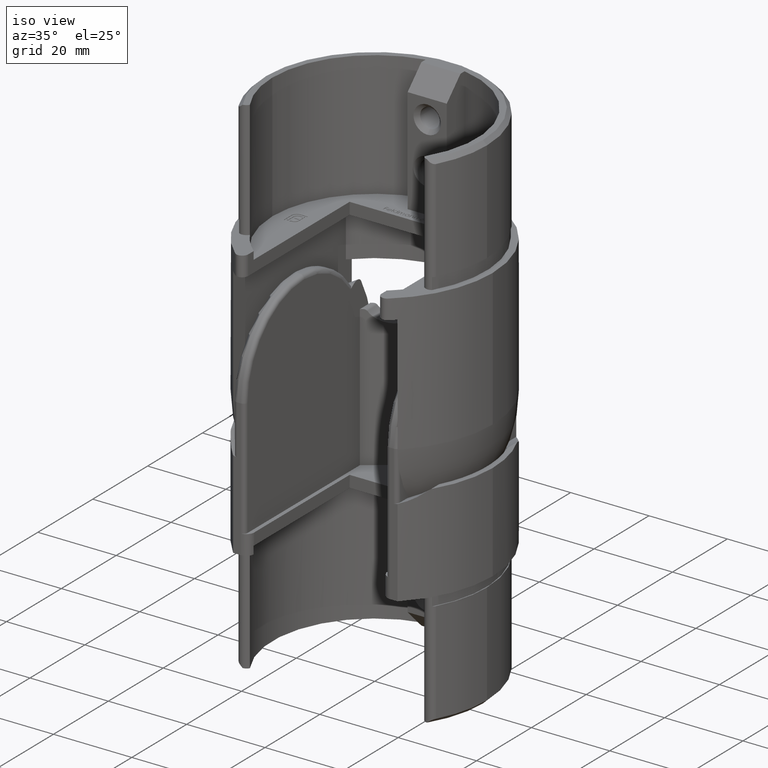
[diagram: clean part render]
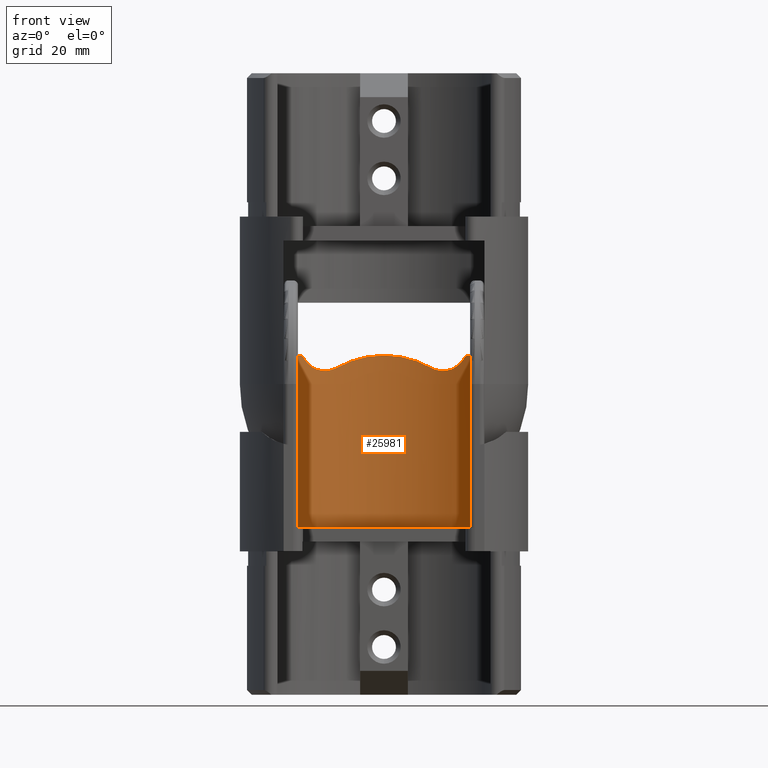
[diagram: tour spotlight — one face highlighted and labeled with its STEP entity id]
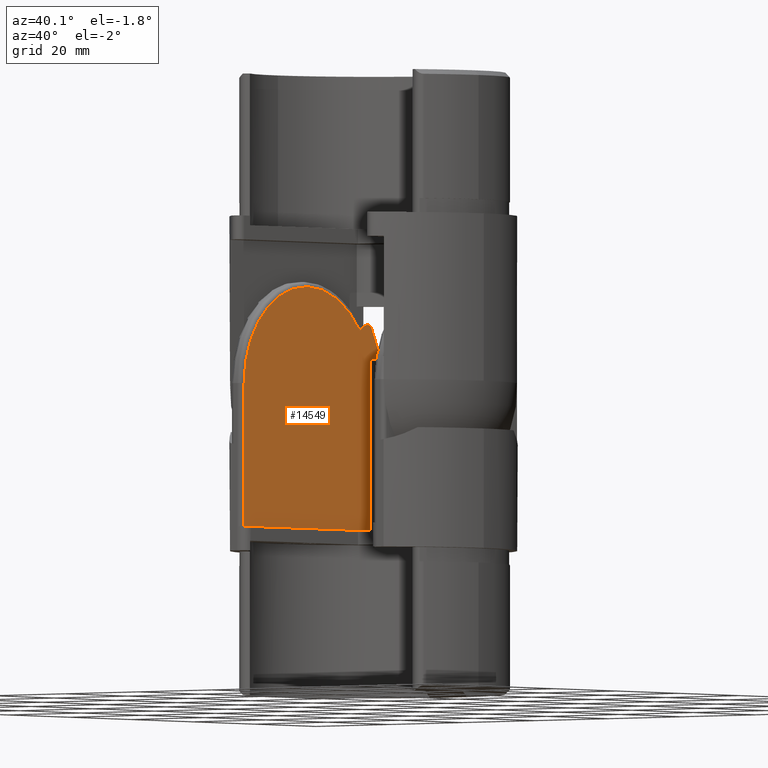
[diagram: tour spotlight — one face highlighted and labeled with its STEP entity id]
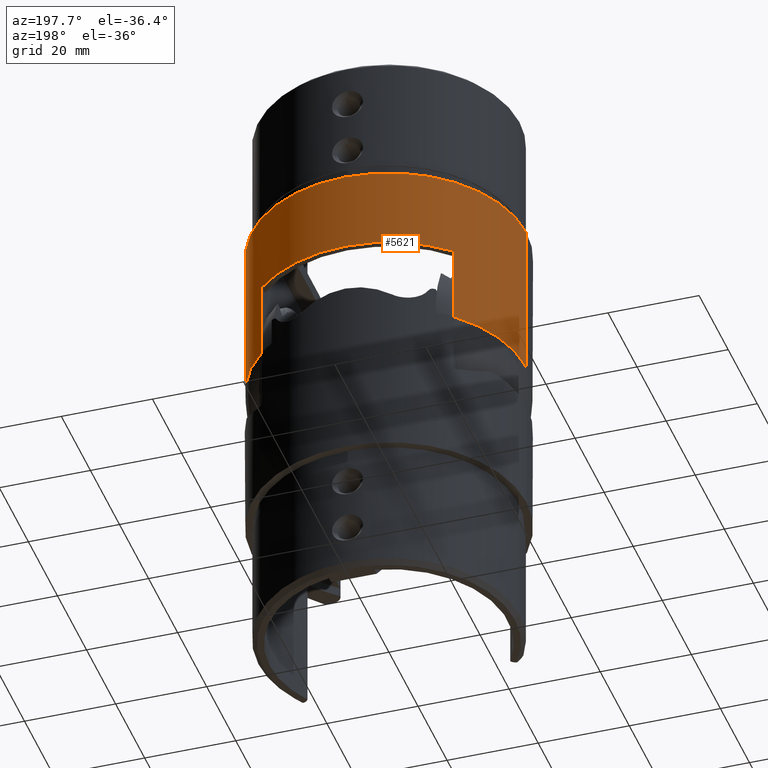
[diagram: tour spotlight — one face highlighted and labeled with its STEP entity id]
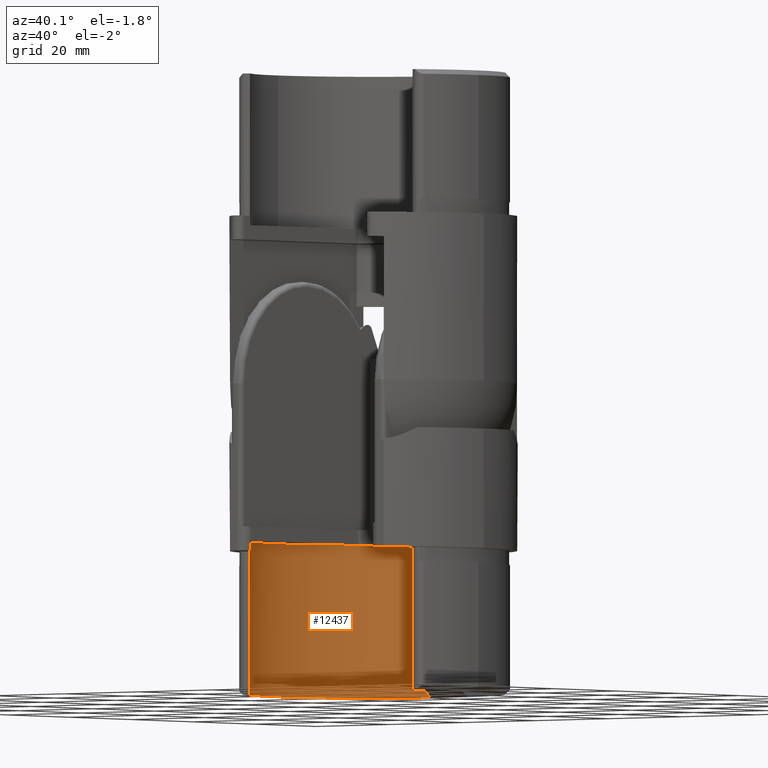
[diagram: tour spotlight — one face highlighted and labeled with its STEP entity id]
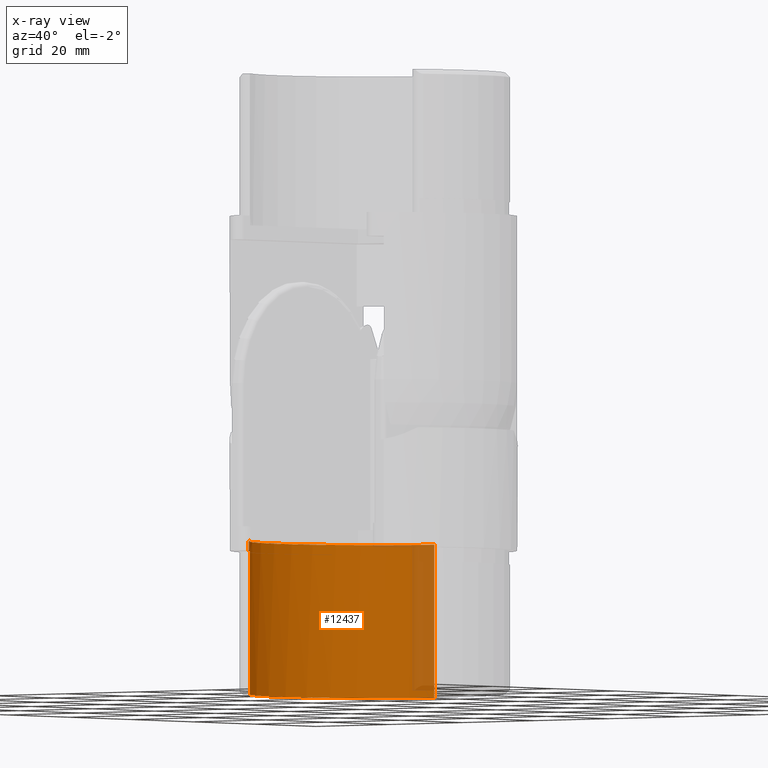
[diagram: x-ray of the same camera — body ghosted, this tour face saturated]
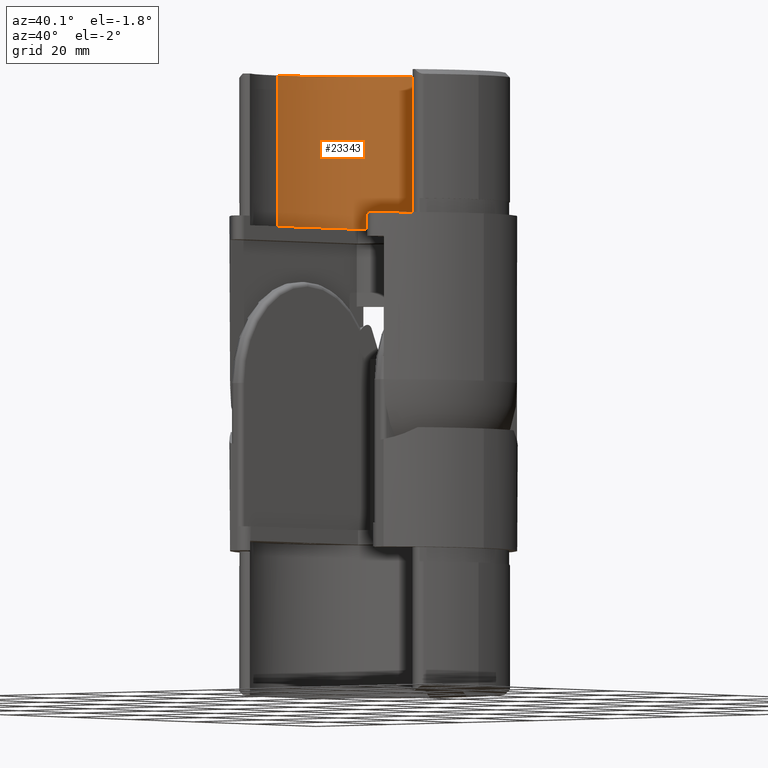
[diagram: tour spotlight — one face highlighted and labeled with its STEP entity id]
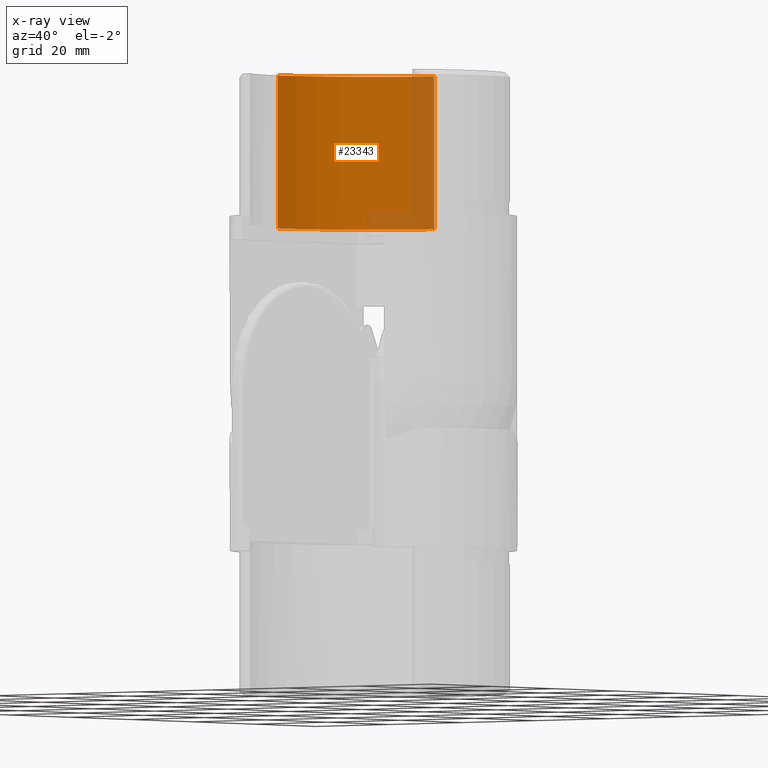
[diagram: x-ray of the same camera — body ghosted, this tour face saturated]
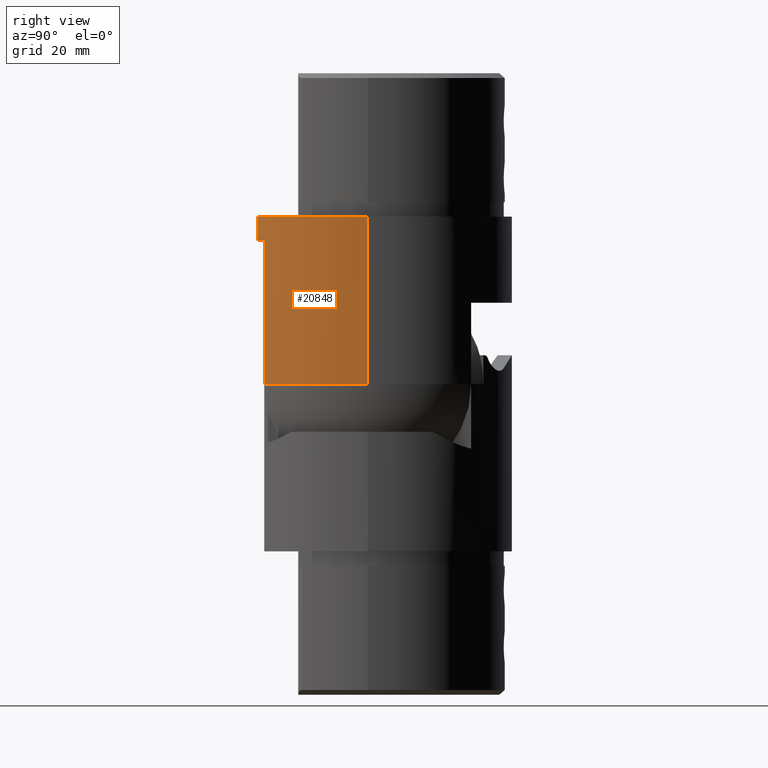
[diagram: tour spotlight — one face highlighted and labeled with its STEP entity id]
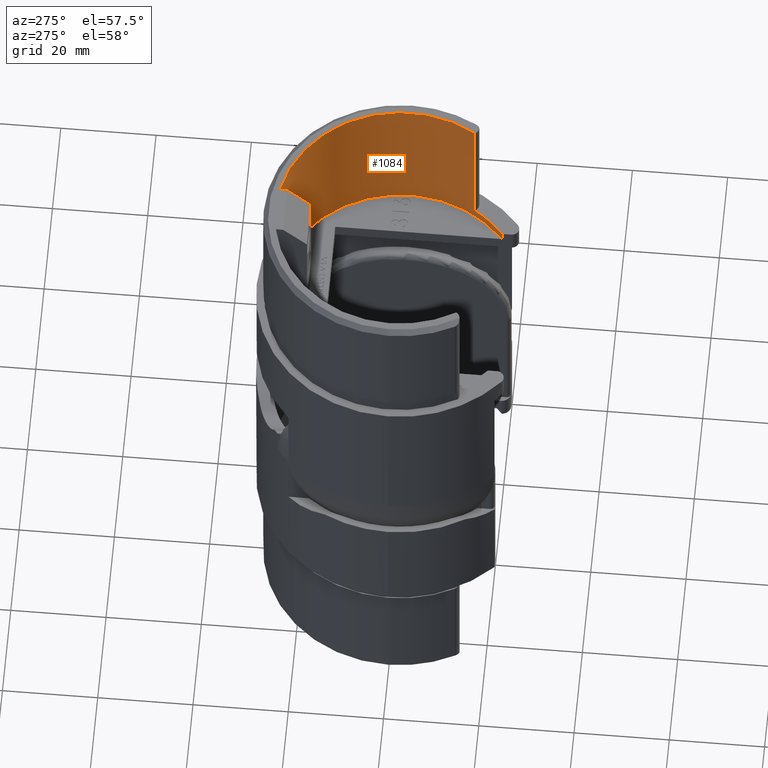
[diagram: tour spotlight — one face highlighted and labeled with its STEP entity id]
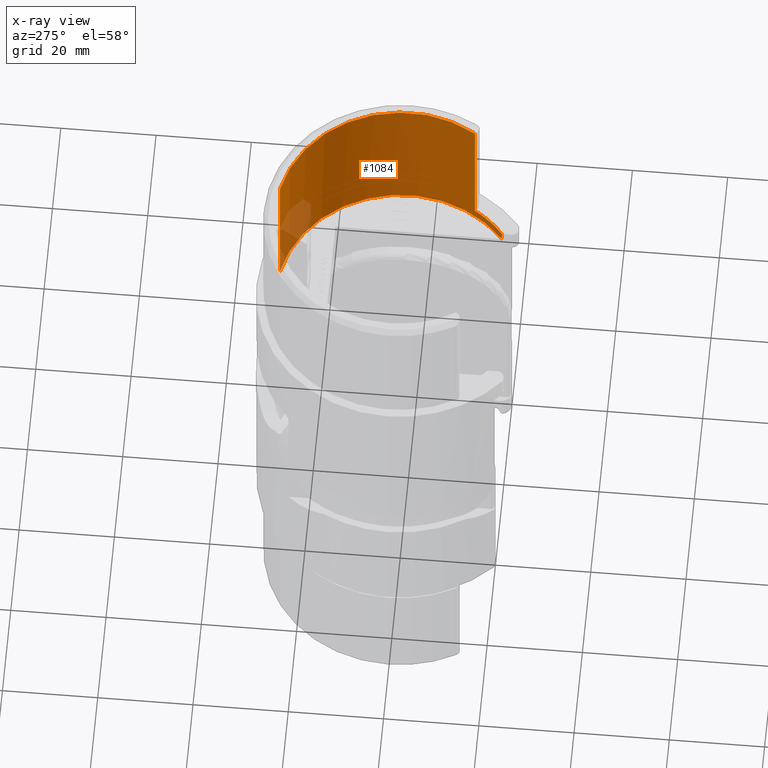
[diagram: x-ray of the same camera — body ghosted, this tour face saturated]
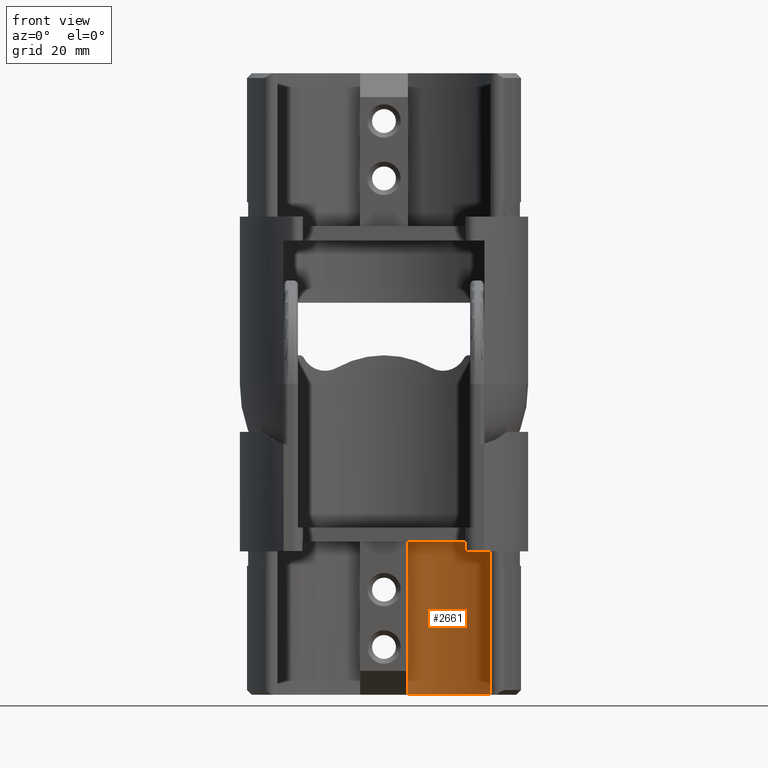
[diagram: tour spotlight — one face highlighted and labeled with its STEP entity id]
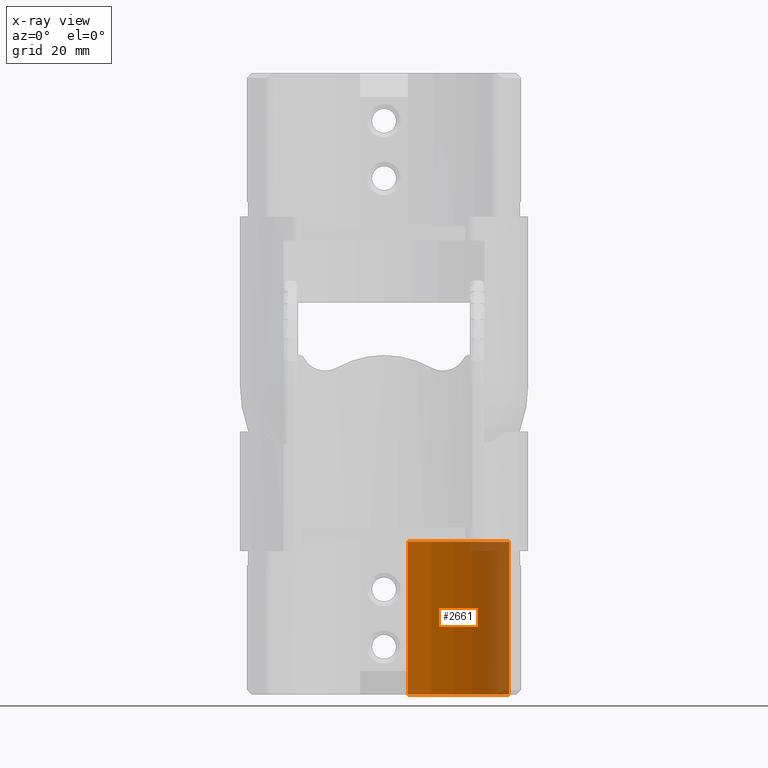
[diagram: x-ray of the same camera — body ghosted, this tour face saturated]
A machine part: a face-by-face anatomy tour. The part has 532 B-rep faces; the first image is the clean iso view, then the 8 largest visible faces are spotlighted one at a time (largest first), each with its STEP entity span.

Face 1 — front view, entity #25981. In plain terms, the highlighted cylindrical surface (partial cylindrical patch) has radius 27.15 mm, axis along (-0, -0, -1).
Definition (entity closure, byte-faithful):
#4 = EDGE_CURVE ( 'NONE', #19215, #28466, #17053, .T. ) ;
#59 = CARTESIAN_POINT ( 'NONE',  ( -9.855999999999998096, 25.29786085818323826, -36.40285218003070611 ) ) ;
#556 = CARTESIAN_POINT ( 'NONE',  ( -11.64953690046617929, 24.52438664235300081, -35.79585068811073967 ) ) ;
#564 = CARTESIAN_POINT ( 'NONE',  ( 1.649705368043440938E-25, 27.14999999999999503, -38.99999999999998579 ) ) ;
#729 = CARTESIAN_POINT ( 'NONE',  ( 13.14172628603782478, 23.76039229492722882, -35.81052548185998319 ) ) ;
#848 = CARTESIAN_POINT ( 'NONE',  ( -16.76236849923077088, 21.35756311698494159, -38.45892753750639059 ) ) ;
#1257 = DIRECTION ( 'NONE',  ( -1.000000000000000000, 0.000000000000000000, 0.000000000000000000 ) ) ;
#1272 = EDGE_CURVE ( 'NONE', #17505, #25627, #22356, .T. ) ;
#1311 = AXIS2_PLACEMENT_3D ( 'NONE', #16207, #2245, #23581 ) ;
#1420 = CARTESIAN_POINT ( 'NONE',  ( -16.76236849923077088, 21.35756311698494159, -38.45892753750639059 ) ) ;
#1432 = CARTESIAN_POINT ( 'NONE',  ( 3.466990336596091904, 26.93118877494105945, -38.70202500568675674 ) ) ;
#1530 = CARTESIAN_POINT ( 'NONE',  ( 17.65084219907692642, 20.62935456245019239, -38.99999999999999289 ) ) ;
#1859 = B_SPLINE_CURVE_WITH_KNOTS ( 'NONE', 3,
 ( #12326, #20339, #16238, #5920, #10154, #1432, #9625, #11981, #23622, #14623 ),
 .UNSPECIFIED., .F., .F.,
 ( 4, 2, 2, 2, 4 ),
 ( 1.734723475976807094E-18, 0.005243620571763016325, 0.006554525714703767804, 0.007865430857644519283, 0.01048724114352602398 ),
 .UNSPECIFIED. ) ;
#2245 = DIRECTION ( 'NONE',  ( -0.000000000000000000, -0.000000000000000000, -1.000000000000000000 ) ) ;
#2479 = EDGE_CURVE ( 'NONE', #21468, #17505, #25243, .T. ) ;
#2620 = CARTESIAN_POINT ( 'NONE',  ( 17.48312144213227270, 20.77196539619377447, -38.98952033386763816 ) ) ;
#2952 = CARTESIAN_POINT ( 'NONE',  ( 11.64953690046617929, 24.52438664235300081, -35.79585068811073967 ) ) ;
#3085 = CARTESIAN_POINT ( 'NONE',  ( -0.8728357178837506947, 27.14999999999999147, -38.99999999999999289 ) ) ;
#3253 = CARTESIAN_POINT ( 'NONE',  ( 16.59931079519326858, 21.48553807867622112, -38.14325138004198834 ) ) ;
#3547 = EDGE_CURVE ( 'NONE', #19215, #9615, #1859, .T. ) ;
#4953 = CARTESIAN_POINT ( 'NONE',  ( 16.76236849923077443, 21.35756311698493803, -38.45892753750639059 ) ) ;
#4959 = AXIS2_PLACEMENT_3D ( 'NONE', #5379, #26304, #28651 ) ;
#5091 = VERTEX_POINT ( 'NONE', #5805 ) ;
#5298 = CARTESIAN_POINT ( 'NONE',  ( 10.97906559897014134, 24.83172443697723608, -35.93366642262661514 ) ) ;
#5379 = CARTESIAN_POINT ( 'NONE',  ( 0.000000000000000000, 0.000000000000000000, -38.99999999999999289 ) ) ;
#5416 = CARTESIAN_POINT ( 'NONE',  ( -10.48744249978978083, 25.04523366981128873, -36.08881966479116699 ) ) ;
#5592 = CARTESIAN_POINT ( 'NONE',  ( 13.46707371672883902, 23.57732726455373395, -35.87610097392074238 ) ) ;
#5805 = CARTESIAN_POINT ( 'NONE',  ( -9.855999999999998096, 25.29786085818323826, -36.40285218003070611 ) ) ;
#5920 = CARTESIAN_POINT ( 'NONE',  ( 4.748720461205732768, 26.73487867478699442, -38.43288906175617115 ) ) ;
#6280 = CARTESIAN_POINT ( 'NONE',  ( -18.00000000000000711, 20.32541512491195235, -157.4942136258985670 ) ) ;
#6401 = ORIENTED_EDGE ( 'NONE', *, *, #10336, .F. ) ;
#6781 = B_SPLINE_CURVE_WITH_KNOTS ( 'NONE', 3,
 ( #59, #17139, #5416, #14509, #9904, #14818, #556, #28483, #16836, #21479, #10113, #24005, #12271, #7567, #26147, #26346, #14611, #28690, #16941, #848 ),
 .UNSPECIFIED., .F., .F.,
 ( 4, 2, 2, 2, 2, 2, 2, 2, 2, 4 ),
 ( 1.734723475976806902E-18, 0.001115406637026864194, 0.001673109955540295858, 0.002230813274053727521, 0.003346219911080594751, 0.004461626548107461981, 0.005577033185134329211, 0.006692439822161197309, 0.007807846459188064539, 0.008923253096214932636 ),
 .UNSPECIFIED. ) ;
#7031 = EDGE_CURVE ( 'NONE', #12991, #17219, #25479, .T. ) ;
#7178 = AXIS2_PLACEMENT_3D ( 'NONE', #10912, #11116, #15508 ) ;
#7544 = CARTESIAN_POINT ( 'NONE',  ( 9.855999999999999872, 25.29786085818323826, -36.40285218003069900 ) ) ;
#7567 = CARTESIAN_POINT ( 'NONE',  ( -14.96250888826568115, 22.65750915378987074, -36.49639779482667734 ) ) ;
#7647 = CARTESIAN_POINT ( 'NONE',  ( 12.48501964951245391, 24.11193679772039999, -35.74540742929338677 ) ) ;
#7721 = ORIENTED_EDGE ( 'NONE', *, *, #1272, .T. ) ;
#7750 = DIRECTION ( 'NONE',  ( -0.000000000000000000, -0.000000000000000000, 1.000000000000000000 ) ) ;
#7753 = CARTESIAN_POINT ( 'NONE',  ( 12.15302458509757244, 24.28096979426060997, -35.74497899728715566 ) ) ;
#7851 = ORIENTED_EDGE ( 'NONE', *, *, #14252, .F. ) ;
#7862 = CARTESIAN_POINT ( 'NONE',  ( 15.97698283272031006, 21.95290526473543835, -37.32696602871533997 ) ) ;
#8456 = EDGE_LOOP ( 'NONE', ( #18583, #8981, #7851, #26226, #23997, #6401, #17841, #7721, #27907, #27696, #14397 ) ) ;
#8981 = ORIENTED_EDGE ( 'NONE', *, *, #18837, .F. ) ;
#8997 = EDGE_CURVE ( 'NONE', #12991, #21018, #17370, .T. ) ;
#9136 = B_SPLINE_CURVE_WITH_KNOTS ( 'NONE', 3,
 ( #11828, #25621, #9278, #27748, #13868, #11727 ),
 .UNSPECIFIED., .F., .F.,
 ( 4, 2, 4 ),
 ( 0.000000000000000000, 0.0006563015369132407318, 0.001312603073826481464 ),
 .UNSPECIFIED. ) ;
#9278 = CARTESIAN_POINT ( 'NONE',  ( -17.00065784832055371, 21.16933616447996869, -38.78074580772950952 ) ) ;
#9615 = VERTEX_POINT ( 'NONE', #21580 ) ;
#9625 = CARTESIAN_POINT ( 'NONE',  ( 3.037869092508701296, 26.98298089015681711, -38.77271451172067174 ) ) ;
#9751 = CARTESIAN_POINT ( 'NONE',  ( 17.65084219907692642, 20.62935456245019239, -38.99999999999999289 ) ) ;
#9904 = CARTESIAN_POINT ( 'NONE',  ( -11.14482407220430638, 24.75781422795309084, -35.89062151131563638 ) ) ;
#10113 = CARTESIAN_POINT ( 'NONE',  ( -13.46707371672883546, 23.57732726455373040, -35.87610097392074238 ) ) ;
#10154 = CARTESIAN_POINT ( 'NONE',  ( 4.321659240572637728, 26.80731639373727404, -38.53235963029378297 ) ) ;
#10336 = EDGE_CURVE ( 'NONE', #21468, #28466, #28546, .T. ) ;
#10407 = CARTESIAN_POINT ( 'NONE',  ( 16.76236849923077443, 21.35756311698493803, -38.45892753750639059 ) ) ;
#10440 = CARTESIAN_POINT ( 'NONE',  ( 0.000000000000000000, 0.000000000000000000, -3.000000000000000000 ) ) ;
#10902 = CARTESIAN_POINT ( 'NONE',  ( -17.65084219907692642, 20.62935456245019239, -38.99999999999999289 ) ) ;
#10912 = CARTESIAN_POINT ( 'NONE',  ( 0.000000000000000000, 0.000000000000000000, -157.4942136258985670 ) ) ;
#11116 = DIRECTION ( 'NONE',  ( -0.000000000000000000, -0.000000000000000000, 1.000000000000000000 ) ) ;
#11727 = CARTESIAN_POINT ( 'NONE',  ( -17.65084219907692642, 20.62935456245019239, -38.99999999999999289 ) ) ;
#11741 = CIRCLE ( 'NONE', #12691, 27.14999999999999503 ) ;
#11828 = CARTESIAN_POINT ( 'NONE',  ( -16.76236849923077088, 21.35756311698494159, -38.45892753750639059 ) ) ;
#11981 = CARTESIAN_POINT ( 'NONE',  ( 1.745156399668636782, 27.10768441803631745, -38.94266733116745627 ) ) ;
#12208 = CARTESIAN_POINT ( 'NONE',  ( 17.23533325703428432, 20.97798584012423362, -38.91398730263668426 ) ) ;
#12251 = CARTESIAN_POINT ( 'NONE',  ( 11.47991626899729134, 24.60422710436220228, -35.82167721444744757 ) ) ;
#12271 = CARTESIAN_POINT ( 'NONE',  ( -14.38720815903912609, 23.02710651979486656, -36.18924948435826394 ) ) ;
#12280 = CARTESIAN_POINT ( 'NONE',  ( -8.374660251238314146, 25.83903470648544598, -37.18198630858349674 ) ) ;
#12326 = CARTESIAN_POINT ( 'NONE',  ( 9.855999999999999872, 25.29786085818323826, -36.40285218003069900 ) ) ;
#12691 = AXIS2_PLACEMENT_3D ( 'NONE', #10440, #26451, #1257 ) ;
#12991 = VERTEX_POINT ( 'NONE', #21595 ) ;
#13450 = FACE_OUTER_BOUND ( 'NONE', #8456, .T. ) ;
#13690 = CARTESIAN_POINT ( 'NONE',  ( 18.00000000000000355, 20.32541512491195235, -3.000000000000000000 ) ) ;
#13868 = CARTESIAN_POINT ( 'NONE',  ( -17.48259547637318079, 20.77330944693123627, -38.99999999999999289 ) ) ;
#14250 = CARTESIAN_POINT ( 'NONE',  ( 16.85867381866304981, 21.28197840519374040, -38.64537253476191836 ) ) ;
#14252 = EDGE_CURVE ( 'NONE', #9615, #5091, #20435, .T. ) ;
#14312 = EDGE_CURVE ( 'NONE', #25627, #21018, #11741, .T. ) ;
#14397 = ORIENTED_EDGE ( 'NONE', *, *, #7031, .T. ) ;
#14421 = CARTESIAN_POINT ( 'NONE',  ( -9.855999999999998096, 25.29786085818323826, -36.40285218003070611 ) ) ;
#14509 = CARTESIAN_POINT ( 'NONE',  ( -10.97906559897013423, 24.83172443697723253, -35.93366642262662225 ) ) ;
#14611 = CARTESIAN_POINT ( 'NONE',  ( -15.97698283272031006, 21.95290526473543835, -37.32696602871533997 ) ) ;
#14623 = CARTESIAN_POINT ( 'NONE',  ( 1.649705368043440938E-25, 27.14999999999999503, -38.99999999999998579 ) ) ;
#14816 = VECTOR ( 'NONE', #15577, 1000.000000000000000 ) ;
#14818 = CARTESIAN_POINT ( 'NONE',  ( -11.47991626899729489, 24.60422710436220939, -35.82167721444745467 ) ) ;
#14831 = CARTESIAN_POINT ( 'NONE',  ( -4.329130897907978337, 26.81593519205566878, -38.54469559122473754 ) ) ;
#14904 = CARTESIAN_POINT ( 'NONE',  ( 16.40635049250184707, 21.63390148624775833, -37.85238526793769864 ) ) ;
#15255 = EDGE_CURVE ( 'NONE', #29919, #17219, #9136, .T. ) ;
#15296 = CARTESIAN_POINT ( 'NONE',  ( 15.23658690841532959, 22.47362453108995695, -36.67919257553581502 ) ) ;
#15508 = DIRECTION ( 'NONE',  ( 1.000000000000000000, 0.000000000000000000, 0.000000000000000000 ) ) ;
#15577 = DIRECTION ( 'NONE',  ( -0.000000000000000000, -0.000000000000000000, 1.000000000000000000 ) ) ;
#16207 = CARTESIAN_POINT ( 'NONE',  ( 0.000000000000000000, 0.000000000000000000, -38.99999999999999289 ) ) ;
#16238 = CARTESIAN_POINT ( 'NONE',  ( 6.840411345075500194, 26.32938687129336230, -37.87350379535597256 ) ) ;
#16836 = CARTESIAN_POINT ( 'NONE',  ( -12.48501964951244503, 24.11193679772039644, -35.74540742929337966 ) ) ;
#16941 = CARTESIAN_POINT ( 'NONE',  ( -16.59931079519327568, 21.48553807867622467, -38.14325138004200255 ) ) ;
#17053 = B_SPLINE_CURVE_WITH_KNOTS ( 'NONE', 3,
 ( #7544, #23789, #28566, #5298, #26125, #12251, #2952, #7753, #7647, #729, #5592, #21960, #17510, #24388, #15296, #22160, #7862, #14904, #3253, #10407 ),
 .UNSPECIFIED., .F., .F.,
 ( 4, 2, 2, 2, 2, 2, 2, 2, 2, 4 ),
 ( 1.734723475976807094E-18, 0.001115406637026867881, 0.001673109955540301712, 0.002230813274053734894, 0.003346219911080602558, 0.004461626548107469788, 0.005577033185134336150, 0.006692439822161204248, 0.007807846459188067141, 0.008923253096214929167 ),
 .UNSPECIFIED. ) ;
#17139 = CARTESIAN_POINT ( 'NONE',  ( -10.16713630113645905, 25.17664272827133232, -36.22664201905952552 ) ) ;
#17166 = CARTESIAN_POINT ( 'NONE',  ( 9.855999999999999872, 25.29786085818323826, -36.40285218003069900 ) ) ;
#17219 = VERTEX_POINT ( 'NONE', #10902 ) ;
#17370 = LINE ( 'NONE', #6280, #14816 ) ;
#17505 = VERTEX_POINT ( 'NONE', #19226 ) ;
#17510 = CARTESIAN_POINT ( 'NONE',  ( 14.38720815903913142, 23.02710651979486656, -36.18924948435826394 ) ) ;
#17841 = ORIENTED_EDGE ( 'NONE', *, *, #2479, .T. ) ;
#18583 = ORIENTED_EDGE ( 'NONE', *, *, #15255, .F. ) ;
#18837 = EDGE_CURVE ( 'NONE', #5091, #29919, #6781, .T. ) ;
#19133 = VECTOR ( 'NONE', #7750, 1000.000000000000000 ) ;
#19215 = VERTEX_POINT ( 'NONE', #17166 ) ;
#19226 = CARTESIAN_POINT ( 'NONE',  ( 18.00000000000000000, 20.32541512491194524, -38.99999999999999289 ) ) ;
#20339 = CARTESIAN_POINT ( 'NONE',  ( 8.398027537714279234, 25.86588424438349065, -37.22856605955080767 ) ) ;
#20435 = B_SPLINE_CURVE_WITH_KNOTS ( 'NONE', 3,
 ( #564, #3085, #25959, #28701, #14831, #23821, #26156, #12280, #28286, #14421 ),
 .UNSPECIFIED., .F., .F.,
 ( 4, 2, 2, 2, 4 ),
 ( 0.01048724114352602398, 0.01309887738039655462, 0.01571051361726708354, 0.01832214985413761418, 0.02093378609100814483 ),
 .UNSPECIFIED. ) ;
#20500 = CARTESIAN_POINT ( 'NONE',  ( -18.00000000000000711, 20.32541512491195235, -3.000000000000000000 ) ) ;
#21018 = VERTEX_POINT ( 'NONE', #20500 ) ;
#21468 = VERTEX_POINT ( 'NONE', #1530 ) ;
#21479 = CARTESIAN_POINT ( 'NONE',  ( -13.14172628603782123, 23.76039229492722882, -35.81052548185998319 ) ) ;
#21580 = CARTESIAN_POINT ( 'NONE',  ( 1.649705368043440938E-25, 27.14999999999999503, -38.99999999999998579 ) ) ;
#21595 = CARTESIAN_POINT ( 'NONE',  ( -18.00000000000000000, 20.32541512491194524, -38.99999999999999289 ) ) ;
#21960 = CARTESIAN_POINT ( 'NONE',  ( 14.08828013773382715, 23.21147987941336410, -36.06542902959387931 ) ) ;
#22160 = CARTESIAN_POINT ( 'NONE',  ( 15.74254166722038839, 22.12215545641815595, -37.09389307886265641 ) ) ;
#22356 = LINE ( 'NONE', #26618, #19133 ) ;
#23581 = DIRECTION ( 'NONE',  ( 1.000000000000000000, 0.000000000000000000, 0.000000000000000000 ) ) ;
#23622 = CARTESIAN_POINT ( 'NONE',  ( 0.8762359898078883047, 27.14999999999999503, -38.99999999999999289 ) ) ;
#23648 = CARTESIAN_POINT ( 'NONE',  ( 17.56659339117242169, 20.70143933898942734, -39.00000000000000000 ) ) ;
#23789 = CARTESIAN_POINT ( 'NONE',  ( 10.16713630113646083, 25.17664272827132521, -36.22664201905952552 ) ) ;
#23821 = CARTESIAN_POINT ( 'NONE',  ( -5.987453113451358888, 26.49502141478608408, -38.10201312163414400 ) ) ;
#23997 = ORIENTED_EDGE ( 'NONE', *, *, #4, .T. ) ;
#24005 = CARTESIAN_POINT ( 'NONE',  ( -14.08828013773382715, 23.21147987941337121, -36.06542902959389352 ) ) ;
#24330 = CYLINDRICAL_SURFACE ( 'NONE', #7178, 27.14999999999999503 ) ;
#24388 = CARTESIAN_POINT ( 'NONE',  ( 14.96250888826568826, 22.65750915378987074, -36.49639779482669866 ) ) ;
#25243 = CIRCLE ( 'NONE', #4959, 27.14999999999998792 ) ;
#25479 = CIRCLE ( 'NONE', #1311, 27.14999999999998792 ) ;
#25621 = CARTESIAN_POINT ( 'NONE',  ( -16.85843986765957325, 21.28216202038004923, -38.64491961072344850 ) ) ;
#25627 = VERTEX_POINT ( 'NONE', #13690 ) ;
#25959 = CARTESIAN_POINT ( 'NONE',  ( -1.758988783550820889, 27.10681081122197966, -38.94148173779168332 ) ) ;
#25981 = ADVANCED_FACE ( 'NONE', ( #13450 ), #24330, .F. ) ;
#26087 = CARTESIAN_POINT ( 'NONE',  ( 17.31790049454585656, 20.90991162683442184, -38.94680017154177420 ) ) ;
#26125 = CARTESIAN_POINT ( 'NONE',  ( 11.14482407220430815, 24.75781422795308728, -35.89062151131563638 ) ) ;
#26147 = CARTESIAN_POINT ( 'NONE',  ( -15.23658690841532959, 22.47362453108996405, -36.67919257553581502 ) ) ;
#26156 = CARTESIAN_POINT ( 'NONE',  ( -6.805031787995269532, 26.29604896654636548, -37.82580948627607853 ) ) ;
#26226 = ORIENTED_EDGE ( 'NONE', *, *, #3547, .F. ) ;
#26304 = DIRECTION ( 'NONE',  ( -0.000000000000000000, -0.000000000000000000, -1.000000000000000000 ) ) ;
#26346 = CARTESIAN_POINT ( 'NONE',  ( -15.74254166722039194, 22.12215545641814884, -37.09389307886264930 ) ) ;
#26451 = DIRECTION ( 'NONE',  ( -0.000000000000000000, -0.000000000000000000, 1.000000000000000000 ) ) ;
#26618 = CARTESIAN_POINT ( 'NONE',  ( 18.00000000000000355, 20.32541512491195235, -157.4942136258985670 ) ) ;
#27696 = ORIENTED_EDGE ( 'NONE', *, *, #8997, .F. ) ;
#27748 = CARTESIAN_POINT ( 'NONE',  ( -17.31321822635293728, 20.91448387044496826, -38.95828688778347981 ) ) ;
#27907 = ORIENTED_EDGE ( 'NONE', *, *, #14312, .T. ) ;
#28116 = CARTESIAN_POINT ( 'NONE',  ( 17.00164319497347520, 21.16853887798459510, -38.78142340268373545 ) ) ;
#28286 = CARTESIAN_POINT ( 'NONE',  ( -9.129311540724225793, 25.58097734359568776, -36.81440779060127966 ) ) ;
#28466 = VERTEX_POINT ( 'NONE', #29751 ) ;
#28483 = CARTESIAN_POINT ( 'NONE',  ( -12.15302458509757066, 24.28096979426062063, -35.74497899728714145 ) ) ;
#28546 = B_SPLINE_CURVE_WITH_KNOTS ( 'NONE', 3,
 ( #9751, #23648, #2620, #26087, #12208, #28116, #14250, #4953 ),
 .UNSPECIFIED., .F., .F.,
 ( 4, 2, 2, 4 ),
 ( 4.906538933386797396E-18, 0.0003288241760176381493, 0.0006576483520352713113, 0.001315296704070540237 ),
 .UNSPECIFIED. ) ;
#28566 = CARTESIAN_POINT ( 'NONE',  ( 10.48744249978978438, 25.04523366981128518, -36.08881966479114567 ) ) ;
#28651 = DIRECTION ( 'NONE',  ( 1.000000000000000000, -3.552713678800500298E-14, 0.000000000000000000 ) ) ;
#28690 = CARTESIAN_POINT ( 'NONE',  ( -16.40635049250185062, 21.63390148624775478, -37.85238526793769864 ) ) ;
#28701 = CARTESIAN_POINT ( 'NONE',  ( -3.483790595344563812, 26.93949585615564501, -38.71344562797495570 ) ) ;
#29751 = CARTESIAN_POINT ( 'NONE',  ( 16.76236849923077443, 21.35756311698493803, -38.45892753750639059 ) ) ;
#29919 = VERTEX_POINT ( 'NONE', #1420 ) ;

Face 2 — auxiliary view, entity #14549. In plain terms, the highlighted planar face has unit normal (-1, 0, 0).
Definition (entity closure, byte-faithful):
#326 = CARTESIAN_POINT ( 'NONE',  ( 18.00000000000000355, 0.000000000000000000, -53.65000000000000568 ) ) ;
#491 = VERTEX_POINT ( 'NONE', #20548 ) ;
#557 = CARTESIAN_POINT ( 'NONE',  ( 18.00000000000000711, 19.72645599548740591, -46.09950506969557438 ) ) ;
#1019 = VECTOR ( 'NONE', #23855, 1000.000000000000000 ) ;
#1272 = EDGE_CURVE ( 'NONE', #17505, #25627, #22356, .T. ) ;
#1329 = CARTESIAN_POINT ( 'NONE',  ( 18.00000000000000355, 23.43107551883397832, -38.99999999999999289 ) ) ;
#1549 = DIRECTION ( 'NONE',  ( -0.000000000000000000, 0.000000000000000000, 1.000000000000000000 ) ) ;
#1705 = CARTESIAN_POINT ( 'NONE',  ( 18.00000000001422862, 20.72636130210741356, -45.44886455810423342 ) ) ;
#1769 = CARTESIAN_POINT ( 'NONE',  ( 18.00000000000000355, -20.64999999999999858, -33.00000000000000000 ) ) ;
#2022 = CARTESIAN_POINT ( 'NONE',  ( 18.00000000000000355, 23.43107551883397832, -38.99999999999999289 ) ) ;
#2785 = VERTEX_POINT ( 'NONE', #26673 ) ;
#2963 = CARTESIAN_POINT ( 'NONE',  ( 18.00000000000000355, 43.96577888590059757, -63.78516979916917506 ) ) ;
#3155 = EDGE_CURVE ( 'NONE', #2785, #7520, #24486, .T. ) ;
#3306 = B_SPLINE_CURVE_WITH_KNOTS ( 'NONE', 3,
 ( #27412, #22644, #29877, #2022 ),
 .UNSPECIFIED., .F., .F.,
 ( 4, 4 ),
 ( 0.5001422834535943496, 0.6181825507788584195 ),
 .UNSPECIFIED. ) ;
#3420 = EDGE_CURVE ( 'NONE', #17505, #22244, #12533, .T. ) ;
#3472 = CARTESIAN_POINT ( 'NONE',  ( 18.00000000000000355, 19.60303924552147237, -46.11468073518891941 ) ) ;
#3742 = AXIS2_PLACEMENT_3D ( 'NONE', #23216, #9228, #16550 ) ;
#3864 = AXIS2_PLACEMENT_3D ( 'NONE', #18143, #8774, #11332 ) ;
#4022 = CARTESIAN_POINT ( 'NONE',  ( 18.00765149593363290, 21.17378381923835562, -44.72266380120051110 ) ) ;
#4134 = ORIENTED_EDGE ( 'NONE', *, *, #21704, .T. ) ;
#4678 = CIRCLE ( 'NONE', #3742, 20.65000000000000213 ) ;
#5518 = CARTESIAN_POINT ( 'NONE',  ( 18.00000000001422862, 20.72636130210741356, -45.44886455810423342 ) ) ;
#6159 = VERTEX_POINT ( 'NONE', #1769 ) ;
#6287 = ORIENTED_EDGE ( 'NONE', *, *, #23790, .T. ) ;
#6315 = VECTOR ( 'NONE', #24698, 1000.000000000000000 ) ;
#6381 = CARTESIAN_POINT ( 'NONE',  ( 18.00219796700783448, 22.29527136203116200, -42.41672183786378980 ) ) ;
#6485 = CARTESIAN_POINT ( 'NONE',  ( 18.00604330766041272, 21.57457277953671593, -43.96775203306407320 ) ) ;
#6884 = DIRECTION ( 'NONE',  ( 0.000000000000000000, 0.000000000000000000, -1.000000000000000000 ) ) ;
#6987 = DIRECTION ( 'NONE',  ( -1.000000000000000000, 0.000000000000000000, -0.000000000000000000 ) ) ;
#7047 = ORIENTED_EDGE ( 'NONE', *, *, #18018, .T. ) ;
#7468 = CARTESIAN_POINT ( 'NONE',  ( 18.00000000000000355, 20.30120146952433302, -45.88782270813039332 ) ) ;
#7520 = VERTEX_POINT ( 'NONE', #7534 ) ;
#7534 = CARTESIAN_POINT ( 'NONE',  ( 18.00000000000000355, 18.09774617650534623, -45.67217829739511359 ) ) ;
#7730 = FACE_OUTER_BOUND ( 'NONE', #10259, .T. ) ;
#7750 = DIRECTION ( 'NONE',  ( -0.000000000000000000, -0.000000000000000000, 1.000000000000000000 ) ) ;
#7888 = CARTESIAN_POINT ( 'NONE',  ( 18.00000000000000355, 20.58488429356760463, -45.65012956424705948 ) ) ;
#7988 = CARTESIAN_POINT ( 'NONE',  ( 18.00000000000000000, 18.98709050024956824, -46.08179721049810951 ) ) ;
#8774 = DIRECTION ( 'NONE',  ( 1.000000000000000000, -0.000000000000000000, 0.000000000000000000 ) ) ;
#9228 = DIRECTION ( 'NONE',  ( -1.000000000000000000, 0.000000000000000000, -0.000000000000000000 ) ) ;
#9813 = CARTESIAN_POINT ( 'NONE',  ( 18.00000000000000711, 20.08300129776465681, -46.00002358492370291 ) ) ;
#10131 = CIRCLE ( 'NONE', #14558, 20.65000000000000213 ) ;
#10204 = DIRECTION ( 'NONE',  ( 0.000000000000000000, 0.8191520442889892450, -0.5735764363510496011 ) ) ;
#10259 = EDGE_LOOP ( 'NONE', ( #11209, #19902, #6287, #21042, #7047, #18870, #18588, #4134, #12736, #29510 ) ) ;
#11209 = ORIENTED_EDGE ( 'NONE', *, *, #15518, .F. ) ;
#11332 = DIRECTION ( 'NONE',  ( 0.000000000000000000, 0.000000000000000000, -1.000000000000000000 ) ) ;
#12533 = LINE ( 'NONE', #22760, #6315 ) ;
#12736 = ORIENTED_EDGE ( 'NONE', *, *, #1272, .F. ) ;
#13093 = VERTEX_POINT ( 'NONE', #29306 ) ;
#13690 = CARTESIAN_POINT ( 'NONE',  ( 18.00000000000000355, 20.32541512491195235, -3.000000000000000000 ) ) ;
#13825 = B_SPLINE_CURVE_WITH_KNOTS ( 'NONE', 3,
 ( #1705, #4022, #6485, #6381, #14241, #27909 ),
 .UNSPECIFIED., .F., .F.,
 ( 4, 2, 4 ),
 ( 0.001690389555030821040, 0.004248921686108971842, 0.006807453817187122426 ),
 .UNSPECIFIED. ) ;
#14241 = CARTESIAN_POINT ( 'NONE',  ( 17.99999999946646767, 22.61320709272559526, -41.62516549003945698 ) ) ;
#14510 = CARTESIAN_POINT ( 'NONE',  ( 18.00000000000000355, 19.96527563854327525, -46.04255722726227162 ) ) ;
#14549 = ADVANCED_FACE ( 'NONE', ( #7730 ), #22682, .F. ) ;
#14558 = AXIS2_PLACEMENT_3D ( 'NONE', #23031, #6987, #6884 ) ;
#15518 = EDGE_CURVE ( 'NONE', #25294, #22244, #3306, .T. ) ;
#16550 = DIRECTION ( 'NONE',  ( 0.000000000000000000, -1.776356839400250070E-15, -1.000000000000000000 ) ) ;
#17241 = CARTESIAN_POINT ( 'NONE',  ( 18.00000000000000355, 20.40393780552235015, -45.81702685852640400 ) ) ;
#17505 = VERTEX_POINT ( 'NONE', #19226 ) ;
#18018 = EDGE_CURVE ( 'NONE', #2785, #24201, #4678, .T. ) ;
#18143 = CARTESIAN_POINT ( 'NONE',  ( 18.00000000000000355, -21.64999999999999858, -157.4942136258985670 ) ) ;
#18588 = ORIENTED_EDGE ( 'NONE', *, *, #23923, .T. ) ;
#18595 = B_SPLINE_CURVE_WITH_KNOTS ( 'NONE', 3,
 ( #5518, #21385, #7888, #17241, #7468, #9813, #14510, #557, #3472, #19793, #7988, #24210, #26843, #21885 ),
 .UNSPECIFIED., .F., .F.,
 ( 4, 2, 2, 2, 2, 2, 4 ),
 ( 0.000000000000000000, 0.0003670318344172683839, 0.0007340636688345367677, 0.001101095503251805097, 0.001468127337669073535, 0.002202191006503609761, 0.002936254675338145770 ),
 .UNSPECIFIED. ) ;
#18870 = ORIENTED_EDGE ( 'NONE', *, *, #20336, .T. ) ;
#18945 = EDGE_CURVE ( 'NONE', #13093, #25294, #13825, .T. ) ;
#19133 = VECTOR ( 'NONE', #7750, 1000.000000000000000 ) ;
#19226 = CARTESIAN_POINT ( 'NONE',  ( 18.00000000000000000, 20.32541512491194524, -38.99999999999999289 ) ) ;
#19793 = CARTESIAN_POINT ( 'NONE',  ( 18.00000000000001066, 19.23364408926165936, -46.12375446733744155 ) ) ;
#19902 = ORIENTED_EDGE ( 'NONE', *, *, #18945, .F. ) ;
#20336 = EDGE_CURVE ( 'NONE', #24201, #6159, #10131, .T. ) ;
#20548 = CARTESIAN_POINT ( 'NONE',  ( 18.00000000000000355, -20.64999999999999858, -3.000000000000000000 ) ) ;
#21042 = ORIENTED_EDGE ( 'NONE', *, *, #3155, .F. ) ;
#21385 = CARTESIAN_POINT ( 'NONE',  ( 18.00000000000000711, 20.66240410359608504, -45.55540606159214434 ) ) ;
#21531 = CARTESIAN_POINT ( 'NONE',  ( 18.00000000000000355, -21.64999999999999858, -3.000000000000000000 ) ) ;
#21704 = EDGE_CURVE ( 'NONE', #491, #25627, #28295, .T. ) ;
#21885 = CARTESIAN_POINT ( 'NONE',  ( 18.00000000000000355, 18.09774617650534623, -45.67217829739511359 ) ) ;
#22244 = VERTEX_POINT ( 'NONE', #1329 ) ;
#22356 = LINE ( 'NONE', #26618, #19133 ) ;
#22644 = CARTESIAN_POINT ( 'NONE',  ( 18.00000000000007105, 23.09405866618362069, -40.21730161466865638 ) ) ;
#22682 = PLANE ( 'NONE',  #3864 ) ;
#22760 = CARTESIAN_POINT ( 'NONE',  ( 18.00000000000000355, 24.18723837067803117, -38.99999999999999289 ) ) ;
#23031 = CARTESIAN_POINT ( 'NONE',  ( 18.00000000000000355, 0.000000000000000000, -33.00000000000000000 ) ) ;
#23216 = CARTESIAN_POINT ( 'NONE',  ( 18.00000000000000355, 0.000000000000000000, -33.00000000000000000 ) ) ;
#23299 = LINE ( 'NONE', #29809, #26215 ) ;
#23790 = EDGE_CURVE ( 'NONE', #13093, #7520, #18595, .T. ) ;
#23855 = DIRECTION ( 'NONE',  ( 0.000000000000000000, 1.000000000000000000, 0.000000000000000000 ) ) ;
#23923 = EDGE_CURVE ( 'NONE', #6159, #491, #23299, .T. ) ;
#24201 = VERTEX_POINT ( 'NONE', #326 ) ;
#24210 = CARTESIAN_POINT ( 'NONE',  ( 18.00000000000000711, 18.52199781252897992, -45.92730800892592669 ) ) ;
#24486 = LINE ( 'NONE', #2963, #29586 ) ;
#24698 = DIRECTION ( 'NONE',  ( 8.983961023481195017E-16, 1.000000000000000000, -0.000000000000000000 ) ) ;
#24862 = CARTESIAN_POINT ( 'NONE',  ( 18.00000000000007105, 22.88900497010977375, -40.81766918670847843 ) ) ;
#25294 = VERTEX_POINT ( 'NONE', #24862 ) ;
#25627 = VERTEX_POINT ( 'NONE', #13690 ) ;
#26215 = VECTOR ( 'NONE', #1549, 1000.000000000000000 ) ;
#26618 = CARTESIAN_POINT ( 'NONE',  ( 18.00000000000000355, 20.32541512491195235, -157.4942136258985670 ) ) ;
#26673 = CARTESIAN_POINT ( 'NONE',  ( 18.00000000000000355, 16.91548971456763084, -44.84435341064916969 ) ) ;
#26843 = CARTESIAN_POINT ( 'NONE',  ( 18.00000000000000000, 18.30029850773327738, -45.81400696660287508 ) ) ;
#27412 = CARTESIAN_POINT ( 'NONE',  ( 18.00000000000007105, 22.88900497010977375, -40.81766918670847843 ) ) ;
#27909 = CARTESIAN_POINT ( 'NONE',  ( 18.00000000000007105, 22.88900497010977375, -40.81766918670847843 ) ) ;
#28295 = LINE ( 'NONE', #21531, #1019 ) ;
#29306 = CARTESIAN_POINT ( 'NONE',  ( 18.00000000001422862, 20.72636130210741356, -45.44886455810423342 ) ) ;
#29510 = ORIENTED_EDGE ( 'NONE', *, *, #3420, .T. ) ;
#29586 = VECTOR ( 'NONE', #10204, 1000.000000000000114 ) ;
#29809 = CARTESIAN_POINT ( 'NONE',  ( 18.00000000000000355, -20.64999999999999858, -157.4942136258985670 ) ) ;
#29877 = CARTESIAN_POINT ( 'NONE',  ( 18.00000000000029488, 23.27466339319622790, -39.61078421969900631 ) ) ;

Face 3 — auxiliary view, entity #5621. In plain terms, the highlighted cylindrical surface (partial cylindrical patch) has radius 30.15 mm, axis along (0, 0, 1).
Definition (entity closure, byte-faithful):
#24 = DIRECTION ( 'NONE',  ( -0.000000000000000000, -0.000000000000000000, -1.000000000000000000 ) ) ;
#321 = LINE ( 'NONE', #26622, #12707 ) ;
#367 = VERTEX_POINT ( 'NONE', #10168 ) ;
#1127 = FACE_OUTER_BOUND ( 'NONE', #9489, .T. ) ;
#1187 = EDGE_CURVE ( 'NONE', #14362, #22626, #27831, .T. ) ;
#1322 = LINE ( 'NONE', #3465, #2444 ) ;
#2444 = VECTOR ( 'NONE', #19787, 1000.000000000000000 ) ;
#3285 = DIRECTION ( 'NONE',  ( 0.000000000000000000, 0.000000000000000000, 1.000000000000000000 ) ) ;
#3465 = CARTESIAN_POINT ( 'NONE',  ( -30.14999999999999858, 3.692310099429270397E-15, -3.000000000000000000 ) ) ;
#4001 = AXIS2_PLACEMENT_3D ( 'NONE', #26308, #10080, #9873 ) ;
#4662 = DIRECTION ( 'NONE',  ( 0.000000000000000000, 0.000000000000000000, -1.000000000000000000 ) ) ;
#4802 = CARTESIAN_POINT ( 'NONE',  ( 20.99999999999999645, 21.63382767796766615, -16.00000000000000000 ) ) ;
#5411 = EDGE_CURVE ( 'NONE', #8317, #12696, #9165, .T. ) ;
#5450 = EDGE_CURVE ( 'NONE', #22626, #21487, #21893, .T. ) ;
#5621 = ADVANCED_FACE ( 'NONE', ( #1127 ), #12792, .T. ) ;
#6294 = CARTESIAN_POINT ( 'NONE',  ( -21.00000000000000000, 21.63382767796766259, 40.33193010532020395 ) ) ;
#8317 = VERTEX_POINT ( 'NONE', #4802 ) ;
#8479 = EDGE_CURVE ( 'NONE', #21487, #367, #1322, .T. ) ;
#8827 = DIRECTION ( 'NONE',  ( -0.000000000000000000, -0.000000000000000000, 1.000000000000000000 ) ) ;
#9015 = ORIENTED_EDGE ( 'NONE', *, *, #24972, .F. ) ;
#9165 = LINE ( 'NONE', #27853, #13913 ) ;
#9489 = EDGE_LOOP ( 'NONE', ( #23179, #9708, #12175, #17778, #17658, #13103, #9015, #19091 ) ) ;
#9497 = AXIS2_PLACEMENT_3D ( 'NONE', #21159, #4662, #9561 ) ;
#9561 = DIRECTION ( 'NONE',  ( -1.000000000000000000, 0.000000000000000000, 0.000000000000000000 ) ) ;
#9708 = ORIENTED_EDGE ( 'NONE', *, *, #8479, .T. ) ;
#9873 = DIRECTION ( 'NONE',  ( 1.000000000000000000, 0.000000000000000000, 3.452186021844392809E-15 ) ) ;
#10080 = DIRECTION ( 'NONE',  ( -3.491481338843133355E-15, 0.000000000000000000, 1.000000000000000000 ) ) ;
#10168 = CARTESIAN_POINT ( 'NONE',  ( -30.15000000000000568, 3.692310099429271186E-15, 2.000000000000000000 ) ) ;
#10835 = CARTESIAN_POINT ( 'NONE',  ( -20.99999999999999645, 21.63382767796766259, -16.00000000000000000 ) ) ;
#11070 = CARTESIAN_POINT ( 'NONE',  ( 21.00000000000000000, 21.63382767796766259, -32.99999999999992895 ) ) ;
#11887 = CARTESIAN_POINT ( 'NONE',  ( 30.15000000000000568, 0.000000000000000000, 2.000000000000000000 ) ) ;
#12175 = ORIENTED_EDGE ( 'NONE', *, *, #25560, .F. ) ;
#12542 = DIRECTION ( 'NONE',  ( -0.000000000000000000, -0.000000000000000000, 1.000000000000000000 ) ) ;
#12696 = VERTEX_POINT ( 'NONE', #11070 ) ;
#12707 = VECTOR ( 'NONE', #12542, 1000.000000000000000 ) ;
#12792 = CYLINDRICAL_SURFACE ( 'NONE', #21747, 30.14999999999999858 ) ;
#13103 = ORIENTED_EDGE ( 'NONE', *, *, #5411, .F. ) ;
#13437 = CARTESIAN_POINT ( 'NONE',  ( -30.14999999999999503, 3.692310099429270397E-15, -33.00000000000011369 ) ) ;
#13844 = CIRCLE ( 'NONE', #9497, 30.14999999999999503 ) ;
#13892 = CARTESIAN_POINT ( 'NONE',  ( 0.000000000000000000, 0.000000000000000000, -33.00000000000000711 ) ) ;
#13913 = VECTOR ( 'NONE', #24, 1000.000000000000000 ) ;
#14362 = VERTEX_POINT ( 'NONE', #10835 ) ;
#15097 = CARTESIAN_POINT ( 'NONE',  ( -21.00000000000000000, 21.63382767796767325, -33.00000000000000711 ) ) ;
#16236 = DIRECTION ( 'NONE',  ( 1.000000000000000000, 0.000000000000000000, 3.452186021844392809E-15 ) ) ;
#17658 = ORIENTED_EDGE ( 'NONE', *, *, #24511, .T. ) ;
#17702 = DIRECTION ( 'NONE',  ( 1.000000000000000000, 0.000000000000000000, 0.000000000000000000 ) ) ;
#17778 = ORIENTED_EDGE ( 'NONE', *, *, #18149, .F. ) ;
#18149 = EDGE_CURVE ( 'NONE', #18216, #20445, #321, .T. ) ;
#18216 = VERTEX_POINT ( 'NONE', #22064 ) ;
#19091 = ORIENTED_EDGE ( 'NONE', *, *, #1187, .T. ) ;
#19601 = DIRECTION ( 'NONE',  ( 1.000000000000000000, 0.000000000000000000, 0.000000000000000000 ) ) ;
#19787 = DIRECTION ( 'NONE',  ( -0.000000000000000000, -0.000000000000000000, 1.000000000000000000 ) ) ;
#20040 = CIRCLE ( 'NONE', #24130, 30.15000000000000213 ) ;
#20445 = VERTEX_POINT ( 'NONE', #11887 ) ;
#20898 = DIRECTION ( 'NONE',  ( -3.491481338843133355E-15, 0.000000000000000000, 1.000000000000000000 ) ) ;
#21159 = CARTESIAN_POINT ( 'NONE',  ( 0.000000000000000000, 0.000000000000000000, -16.00000000000000000 ) ) ;
#21487 = VERTEX_POINT ( 'NONE', #13437 ) ;
#21658 = VECTOR ( 'NONE', #27616, 1000.000000000000000 ) ;
#21747 = AXIS2_PLACEMENT_3D ( 'NONE', #29551, #8827, #17702 ) ;
#21893 = CIRCLE ( 'NONE', #4001, 30.14999999999999503 ) ;
#22064 = CARTESIAN_POINT ( 'NONE',  ( 30.14999999999999503, 0.000000000000000000, -32.99999999999990763 ) ) ;
#22626 = VERTEX_POINT ( 'NONE', #15097 ) ;
#23179 = ORIENTED_EDGE ( 'NONE', *, *, #5450, .T. ) ;
#24130 = AXIS2_PLACEMENT_3D ( 'NONE', #29724, #3285, #19601 ) ;
#24511 = EDGE_CURVE ( 'NONE', #18216, #12696, #26912, .T. ) ;
#24972 = EDGE_CURVE ( 'NONE', #14362, #8317, #13844, .T. ) ;
#25560 = EDGE_CURVE ( 'NONE', #20445, #367, #20040, .T. ) ;
#26308 = CARTESIAN_POINT ( 'NONE',  ( 0.000000000000000000, 0.000000000000000000, -33.00000000000000711 ) ) ;
#26622 = CARTESIAN_POINT ( 'NONE',  ( 30.14999999999999858, 0.000000000000000000, -3.000000000000000000 ) ) ;
#26912 = CIRCLE ( 'NONE', #27586, 30.14999999999999503 ) ;
#27586 = AXIS2_PLACEMENT_3D ( 'NONE', #13892, #20898, #16236 ) ;
#27616 = DIRECTION ( 'NONE',  ( -0.000000000000000000, -0.000000000000000000, -1.000000000000000000 ) ) ;
#27831 = LINE ( 'NONE', #6294, #21658 ) ;
#27853 = CARTESIAN_POINT ( 'NONE',  ( 21.00000000000000000, 21.63382767796766259, 40.33193010532020395 ) ) ;
#29551 = CARTESIAN_POINT ( 'NONE',  ( 0.000000000000000000, 0.000000000000000000, -3.000000000000000000 ) ) ;
#29724 = CARTESIAN_POINT ( 'NONE',  ( 0.000000000000000000, 0.000000000000000000, 2.000000000000000000 ) ) ;

Face 4 — auxiliary view, entity #12437. An x-ray twin of the same camera follows (body ghosted, this face saturated) — the face is partly hidden behind the body. In plain terms, the highlighted cylindrical surface (partial cylindrical patch) has radius 26.15 mm, axis along (0, 0, 1).
Definition (entity closure, byte-faithful):
#744 = VERTEX_POINT ( 'NONE', #24310 ) ;
#810 = VECTOR ( 'NONE', #26908, 1000.000000000000000 ) ;
#830 = AXIS2_PLACEMENT_3D ( 'NONE', #13467, #13372, #25132 ) ;
#1466 = EDGE_CURVE ( 'NONE', #18935, #29766, #7830, .T. ) ;
#2296 = CARTESIAN_POINT ( 'NONE',  ( 22.25661668238471691, -13.72827424891396753, 2.000000000000001776 ) ) ;
#2920 = CARTESIAN_POINT ( 'NONE',  ( 0.000000000000000000, 0.000000000000000000, 32.00000000000000000 ) ) ;
#3563 = CARTESIAN_POINT ( 'NONE',  ( 17.01112119313525284, -19.86062072928399402, 2.000000000000000000 ) ) ;
#3632 = CARTESIAN_POINT ( 'NONE',  ( 5.000000000000003553, 25.66753786400246540, 0.000000000000000000 ) ) ;
#4615 = DIRECTION ( 'NONE',  ( -0.000000000000000000, -0.000000000000000000, -1.000000000000000000 ) ) ;
#4812 = AXIS2_PLACEMENT_3D ( 'NONE', #10174, #7944, #8336 ) ;
#5565 = EDGE_LOOP ( 'NONE', ( #21363, #12183, #16841, #30146, #22292, #20453 ) ) ;
#6429 = DIRECTION ( 'NONE',  ( -0.000000000000000000, -0.000000000000000000, -1.000000000000000000 ) ) ;
#7612 = DIRECTION ( 'NONE',  ( -1.000000000000000000, 0.000000000000000000, 0.000000000000000000 ) ) ;
#7830 = CIRCLE ( 'NONE', #27925, 26.15000000000000213 ) ;
#7944 = DIRECTION ( 'NONE',  ( -0.000000000000000000, -0.000000000000000000, -1.000000000000000000 ) ) ;
#8336 = DIRECTION ( 'NONE',  ( 1.000000000000000000, 0.000000000000000000, 0.000000000000000000 ) ) ;
#8872 = EDGE_CURVE ( 'NONE', #26420, #29239, #14848, .T. ) ;
#10174 = CARTESIAN_POINT ( 'NONE',  ( 0.000000000000000000, 0.000000000000000000, 2.000000000000000000 ) ) ;
#10629 = DIRECTION ( 'NONE',  ( 0.000000000000000000, 0.000000000000000000, 1.000000000000000000 ) ) ;
#10717 = FACE_OUTER_BOUND ( 'NONE', #5565, .T. ) ;
#12092 = VECTOR ( 'NONE', #6429, 1000.000000000000000 ) ;
#12183 = ORIENTED_EDGE ( 'NONE', *, *, #15032, .T. ) ;
#12437 = ADVANCED_FACE ( 'NONE', ( #10717 ), #26657, .F. ) ;
#13372 = DIRECTION ( 'NONE',  ( -0.000000000000000000, -0.000000000000000000, -1.000000000000000000 ) ) ;
#13467 = CARTESIAN_POINT ( 'NONE',  ( 0.000000000000000000, 0.000000000000000000, 32.00000000000000000 ) ) ;
#14456 = DIRECTION ( 'NONE',  ( -0.000000000000000000, -0.000000000000000000, -1.000000000000000000 ) ) ;
#14535 = EDGE_CURVE ( 'NONE', #19177, #26420, #27319, .T. ) ;
#14690 = EDGE_CURVE ( 'NONE', #18935, #744, #16814, .T. ) ;
#14848 = CIRCLE ( 'NONE', #4812, 26.15000000000000568 ) ;
#15032 = EDGE_CURVE ( 'NONE', #29766, #29239, #28028, .T. ) ;
#16797 = EDGE_CURVE ( 'NONE', #744, #19177, #20041, .T. ) ;
#16805 = CARTESIAN_POINT ( 'NONE',  ( 17.01112119313525284, -19.86062072928398692, 0.000000000000000000 ) ) ;
#16814 = LINE ( 'NONE', #3632, #810 ) ;
#16841 = ORIENTED_EDGE ( 'NONE', *, *, #8872, .F. ) ;
#17535 = CARTESIAN_POINT ( 'NONE',  ( 17.01112119313525639, -19.86062072928398692, 0.000000000000000000 ) ) ;
#18422 = CARTESIAN_POINT ( 'NONE',  ( 5.000000000000003553, 25.66753786400246540, 0.000000000000000000 ) ) ;
#18722 = AXIS2_PLACEMENT_3D ( 'NONE', #2920, #14456, #7612 ) ;
#18935 = VERTEX_POINT ( 'NONE', #18422 ) ;
#19177 = VERTEX_POINT ( 'NONE', #19717 ) ;
#19717 = CARTESIAN_POINT ( 'NONE',  ( 22.25661668238471691, -13.72827424891396753, 32.00000000000000000 ) ) ;
#20041 = CIRCLE ( 'NONE', #830, 26.15000000000000213 ) ;
#20453 = ORIENTED_EDGE ( 'NONE', *, *, #14690, .F. ) ;
#21156 = VECTOR ( 'NONE', #10629, 1000.000000000000000 ) ;
#21363 = ORIENTED_EDGE ( 'NONE', *, *, #1466, .T. ) ;
#22292 = ORIENTED_EDGE ( 'NONE', *, *, #16797, .F. ) ;
#23407 = DIRECTION ( 'NONE',  ( 1.000000000000000000, 0.000000000000000000, 0.000000000000000000 ) ) ;
#24310 = CARTESIAN_POINT ( 'NONE',  ( 5.000000000000003553, 25.66753786400246540, 32.00000000000000000 ) ) ;
#25132 = DIRECTION ( 'NONE',  ( 1.000000000000000000, 0.000000000000000000, 0.000000000000000000 ) ) ;
#26420 = VERTEX_POINT ( 'NONE', #2296 ) ;
#26657 = CYLINDRICAL_SURFACE ( 'NONE', #18722, 26.15000000000000213 ) ;
#26908 = DIRECTION ( 'NONE',  ( 0.000000000000000000, 0.000000000000000000, 1.000000000000000000 ) ) ;
#27319 = LINE ( 'NONE', #29602, #12092 ) ;
#27925 = AXIS2_PLACEMENT_3D ( 'NONE', #28281, #4615, #23407 ) ;
#28028 = LINE ( 'NONE', #17535, #21156 ) ;
#28281 = CARTESIAN_POINT ( 'NONE',  ( 0.000000000000000000, 0.000000000000000000, 0.000000000000000000 ) ) ;
#29239 = VERTEX_POINT ( 'NONE', #3563 ) ;
#29602 = CARTESIAN_POINT ( 'NONE',  ( 22.25661668238471691, -13.72827424891396753, 32.00000000000000000 ) ) ;
#29766 = VERTEX_POINT ( 'NONE', #16805 ) ;
#30146 = ORIENTED_EDGE ( 'NONE', *, *, #14535, .F. ) ;

Face 5 — auxiliary view, entity #23343. An x-ray twin of the same camera follows (body ghosted, this face saturated) — the face is partly hidden behind the body. In plain terms, the highlighted cylindrical surface (partial cylindrical patch) has radius 26.15 mm, axis along (-0, -0, -1).
Definition (entity closure, byte-faithful):
#132 = VERTEX_POINT ( 'NONE', #4956 ) ;
#1527 = CYLINDRICAL_SURFACE ( 'NONE', #8916, 26.15000000000000213 ) ;
#1655 = CARTESIAN_POINT ( 'NONE',  ( 0.000000000000000000, 0.000000000000000000, 0.000000000000000000 ) ) ;
#4258 = CIRCLE ( 'NONE', #23374, 26.15000000000000213 ) ;
#4956 = CARTESIAN_POINT ( 'NONE',  ( -26.15000000000000213, 0.000000000000000000, 32.00000000000000000 ) ) ;
#5024 = EDGE_LOOP ( 'NONE', ( #26481, #5511, #8070, #8562 ) ) ;
#5374 = VERTEX_POINT ( 'NONE', #18663 ) ;
#5511 = ORIENTED_EDGE ( 'NONE', *, *, #29907, .T. ) ;
#6015 = CARTESIAN_POINT ( 'NONE',  ( -5.000000000000003553, 25.66753786400246540, 0.000000000000000000 ) ) ;
#7270 = CARTESIAN_POINT ( 'NONE',  ( -5.000000000000003553, 25.66753786400246540, 32.00000000000000000 ) ) ;
#7728 = FACE_OUTER_BOUND ( 'NONE', #5024, .T. ) ;
#7925 = CARTESIAN_POINT ( 'NONE',  ( 0.000000000000000000, 0.000000000000000000, 32.00000000000000000 ) ) ;
#8070 = ORIENTED_EDGE ( 'NONE', *, *, #27852, .F. ) ;
#8562 = ORIENTED_EDGE ( 'NONE', *, *, #24728, .T. ) ;
#8916 = AXIS2_PLACEMENT_3D ( 'NONE', #7925, #24948, #10763 ) ;
#8990 = DIRECTION ( 'NONE',  ( 0.000000000000000000, 0.000000000000000000, 1.000000000000000000 ) ) ;
#9345 = LINE ( 'NONE', #20161, #12278 ) ;
#10763 = DIRECTION ( 'NONE',  ( -1.000000000000000000, 0.000000000000000000, 0.000000000000000000 ) ) ;
#10904 = DIRECTION ( 'NONE',  ( 0.000000000000000000, 0.000000000000000000, 1.000000000000000000 ) ) ;
#11134 = DIRECTION ( 'NONE',  ( 1.000000000000000000, 0.000000000000000000, 0.000000000000000000 ) ) ;
#12278 = VECTOR ( 'NONE', #26911, 1000.000000000000000 ) ;
#12787 = VECTOR ( 'NONE', #10904, 1000.000000000000000 ) ;
#15576 = VERTEX_POINT ( 'NONE', #7270 ) ;
#17468 = DIRECTION ( 'NONE',  ( -0.000000000000000000, -0.000000000000000000, -1.000000000000000000 ) ) ;
#18663 = CARTESIAN_POINT ( 'NONE',  ( -26.15000000000000213, 0.000000000000000000, 0.000000000000000000 ) ) ;
#19120 = EDGE_CURVE ( 'NONE', #132, #15576, #27560, .T. ) ;
#19996 = CARTESIAN_POINT ( 'NONE',  ( -5.000000000000003553, 25.66753786400246540, 0.000000000000000000 ) ) ;
#20065 = LINE ( 'NONE', #6015, #12787 ) ;
#20161 = CARTESIAN_POINT ( 'NONE',  ( -26.15000000000000213, 0.000000000000000000, 32.00000000000000000 ) ) ;
#23343 = ADVANCED_FACE ( 'NONE', ( #7728 ), #1527, .F. ) ;
#23374 = AXIS2_PLACEMENT_3D ( 'NONE', #1655, #8990, #11134 ) ;
#23850 = VERTEX_POINT ( 'NONE', #19996 ) ;
#24339 = CARTESIAN_POINT ( 'NONE',  ( 0.000000000000000000, 0.000000000000000000, 32.00000000000000000 ) ) ;
#24728 = EDGE_CURVE ( 'NONE', #23850, #15576, #20065, .T. ) ;
#24948 = DIRECTION ( 'NONE',  ( -0.000000000000000000, -0.000000000000000000, -1.000000000000000000 ) ) ;
#26481 = ORIENTED_EDGE ( 'NONE', *, *, #19120, .F. ) ;
#26911 = DIRECTION ( 'NONE',  ( -0.000000000000000000, -0.000000000000000000, -1.000000000000000000 ) ) ;
#27560 = CIRCLE ( 'NONE', #27952, 26.15000000000000213 ) ;
#27852 = EDGE_CURVE ( 'NONE', #23850, #5374, #4258, .T. ) ;
#27952 = AXIS2_PLACEMENT_3D ( 'NONE', #24339, #17468, #28814 ) ;
#28814 = DIRECTION ( 'NONE',  ( 1.000000000000000000, 0.000000000000000000, 0.000000000000000000 ) ) ;
#29907 = EDGE_CURVE ( 'NONE', #132, #5374, #9345, .T. ) ;

Face 6 — right view, entity #20848. In plain terms, the highlighted cylindrical surface (partial cylindrical patch) has radius 30.15 mm, axis along (0, 0, 1).
Definition (entity closure, byte-faithful):
#321 = LINE ( 'NONE', #26622, #12707 ) ;
#434 = LINE ( 'NONE', #24627, #14289 ) ;
#1050 = EDGE_CURVE ( 'NONE', #2383, #25512, #22725, .T. ) ;
#1376 = ORIENTED_EDGE ( 'NONE', *, *, #5582, .F. ) ;
#1941 = VERTEX_POINT ( 'NONE', #9517 ) ;
#2383 = VERTEX_POINT ( 'NONE', #15043 ) ;
#2649 = AXIS2_PLACEMENT_3D ( 'NONE', #22471, #11017, #8754 ) ;
#2815 = DIRECTION ( 'NONE',  ( 1.000000000000000000, 0.000000000000000000, 3.452186021844392809E-15 ) ) ;
#3313 = EDGE_CURVE ( 'NONE', #25512, #28193, #12873, .T. ) ;
#3394 = CARTESIAN_POINT ( 'NONE',  ( 0.000000000000000000, 0.000000000000000000, -3.000000000000000000 ) ) ;
#4443 = ORIENTED_EDGE ( 'NONE', *, *, #18149, .T. ) ;
#4871 = EDGE_LOOP ( 'NONE', ( #23619, #4443, #1376, #12555, #18694, #8537 ) ) ;
#5055 = DIRECTION ( 'NONE',  ( -3.491481338843133355E-15, 0.000000000000000000, 1.000000000000000000 ) ) ;
#5582 = EDGE_CURVE ( 'NONE', #1941, #20445, #20437, .T. ) ;
#5742 = FACE_OUTER_BOUND ( 'NONE', #4871, .T. ) ;
#6046 = DIRECTION ( 'NONE',  ( 1.000000000000000000, 0.000000000000000000, 0.000000000000000000 ) ) ;
#7956 = CYLINDRICAL_SURFACE ( 'NONE', #22879, 30.14999999999999858 ) ;
#8537 = ORIENTED_EDGE ( 'NONE', *, *, #1050, .F. ) ;
#8754 = DIRECTION ( 'NONE',  ( -1.000000000000000000, 0.000000000000000000, 0.000000000000000000 ) ) ;
#9517 = CARTESIAN_POINT ( 'NONE',  ( 19.50796103196483955, -22.98830042380995664, 2.000000000000000000 ) ) ;
#10290 = EDGE_CURVE ( 'NONE', #2383, #18216, #12960, .T. ) ;
#10555 = DIRECTION ( 'NONE',  ( -0.000000000000000000, -0.000000000000000000, 1.000000000000000000 ) ) ;
#11017 = DIRECTION ( 'NONE',  ( 0.000000000000000000, 0.000000000000000000, -1.000000000000000000 ) ) ;
#11887 = CARTESIAN_POINT ( 'NONE',  ( 30.15000000000000568, 0.000000000000000000, 2.000000000000000000 ) ) ;
#12542 = DIRECTION ( 'NONE',  ( -0.000000000000000000, -0.000000000000000000, 1.000000000000000000 ) ) ;
#12555 = ORIENTED_EDGE ( 'NONE', *, *, #14455, .F. ) ;
#12707 = VECTOR ( 'NONE', #12542, 1000.000000000000000 ) ;
#12775 = CARTESIAN_POINT ( 'NONE',  ( 20.99999999999999645, -21.63382767796766970, -3.000000000000000000 ) ) ;
#12873 = CIRCLE ( 'NONE', #2649, 30.14999999999999858 ) ;
#12960 = CIRCLE ( 'NONE', #29184, 30.14999999999999503 ) ;
#13417 = DIRECTION ( 'NONE',  ( 0.000000000000000000, 0.000000000000000000, 1.000000000000000000 ) ) ;
#13560 = DIRECTION ( 'NONE',  ( -0.000000000000000000, -0.000000000000000000, 1.000000000000000000 ) ) ;
#14289 = VECTOR ( 'NONE', #13560, 1000.000000000000000 ) ;
#14451 = CARTESIAN_POINT ( 'NONE',  ( 0.000000000000000000, 0.000000000000000000, -33.00000000000000711 ) ) ;
#14455 = EDGE_CURVE ( 'NONE', #28193, #1941, #434, .T. ) ;
#15043 = CARTESIAN_POINT ( 'NONE',  ( 21.00000000000009237, -21.63382767796757378, -33.00000000000000711 ) ) ;
#18149 = EDGE_CURVE ( 'NONE', #18216, #20445, #321, .T. ) ;
#18216 = VERTEX_POINT ( 'NONE', #22064 ) ;
#18544 = CARTESIAN_POINT ( 'NONE',  ( 19.50796103196483955, -22.98830042380995664, -3.000000000000000000 ) ) ;
#18694 = ORIENTED_EDGE ( 'NONE', *, *, #3313, .F. ) ;
#20148 = CARTESIAN_POINT ( 'NONE',  ( 0.000000000000000000, 0.000000000000000000, 2.000000000000000000 ) ) ;
#20437 = CIRCLE ( 'NONE', #28553, 30.15000000000000213 ) ;
#20445 = VERTEX_POINT ( 'NONE', #11887 ) ;
#20848 = ADVANCED_FACE ( 'NONE', ( #5742 ), #7956, .T. ) ;
#22064 = CARTESIAN_POINT ( 'NONE',  ( 30.14999999999999503, 0.000000000000000000, -32.99999999999990763 ) ) ;
#22471 = CARTESIAN_POINT ( 'NONE',  ( 0.000000000000000000, 0.000000000000000000, -3.000000000000000000 ) ) ;
#22725 = LINE ( 'NONE', #23967, #27087 ) ;
#22879 = AXIS2_PLACEMENT_3D ( 'NONE', #3394, #10555, #6046 ) ;
#23619 = ORIENTED_EDGE ( 'NONE', *, *, #10290, .T. ) ;
#23672 = DIRECTION ( 'NONE',  ( -0.000000000000000000, -0.000000000000000000, 1.000000000000000000 ) ) ;
#23967 = CARTESIAN_POINT ( 'NONE',  ( 20.99999999999999645, -21.63382767796766259, -20.99999999999999645 ) ) ;
#24627 = CARTESIAN_POINT ( 'NONE',  ( 19.50796103196483955, -22.98830042380995664, -3.000000000000000000 ) ) ;
#25512 = VERTEX_POINT ( 'NONE', #12775 ) ;
#26622 = CARTESIAN_POINT ( 'NONE',  ( 30.14999999999999858, 0.000000000000000000, -3.000000000000000000 ) ) ;
#27087 = VECTOR ( 'NONE', #23672, 1000.000000000000000 ) ;
#28193 = VERTEX_POINT ( 'NONE', #18544 ) ;
#28553 = AXIS2_PLACEMENT_3D ( 'NONE', #20148, #13417, #29659 ) ;
#29184 = AXIS2_PLACEMENT_3D ( 'NONE', #14451, #5055, #2815 ) ;
#29659 = DIRECTION ( 'NONE',  ( 1.000000000000000000, 0.000000000000000000, 0.000000000000000000 ) ) ;

Face 7 — auxiliary view, entity #1084. An x-ray twin of the same camera follows (body ghosted, this face saturated) — the face is partly hidden behind the body. In plain terms, the highlighted cylindrical surface (partial cylindrical patch) has radius 26.15 mm, axis along (-0, -0, -1).
Definition (entity closure, byte-faithful):
#520 = EDGE_LOOP ( 'NONE', ( #11886, #19778, #24915, #12704, #18750, #10015 ) ) ;
#726 = DIRECTION ( 'NONE',  ( 1.000000000000000000, 0.000000000000000000, 0.000000000000000000 ) ) ;
#1084 = ADVANCED_FACE ( 'NONE', ( #23106 ), #6368, .F. ) ;
#1245 = VERTEX_POINT ( 'NONE', #12540 ) ;
#2152 = CIRCLE ( 'NONE', #21765, 26.15000000000000213 ) ;
#2604 = DIRECTION ( 'NONE',  ( 1.000000000000000000, 0.000000000000000000, 0.000000000000000000 ) ) ;
#3981 = AXIS2_PLACEMENT_3D ( 'NONE', #18816, #28001, #2604 ) ;
#5193 = DIRECTION ( 'NONE',  ( 0.000000000000000000, 0.000000000000000000, 1.000000000000000000 ) ) ;
#5284 = CARTESIAN_POINT ( 'NONE',  ( 0.000000000000000000, 0.000000000000000000, 32.00000000000000000 ) ) ;
#5464 = VECTOR ( 'NONE', #26133, 1000.000000000000000 ) ;
#6122 = CIRCLE ( 'NONE', #3981, 26.15000000000000213 ) ;
#6196 = LINE ( 'NONE', #7350, #5464 ) ;
#6368 = CYLINDRICAL_SURFACE ( 'NONE', #21701, 26.15000000000000213 ) ;
#6516 = CARTESIAN_POINT ( 'NONE',  ( 17.00000000000008527, -19.87014091545395544, 2.000000000000000000 ) ) ;
#7350 = CARTESIAN_POINT ( 'NONE',  ( 5.000000000000003553, 25.66753786400246540, 0.000000000000000000 ) ) ;
#8448 = DIRECTION ( 'NONE',  ( -0.000000000000000000, -0.000000000000000000, -1.000000000000000000 ) ) ;
#8478 = CARTESIAN_POINT ( 'NONE',  ( 22.25661668238471691, -13.72827424891396753, 32.00000000000000000 ) ) ;
#8514 = VERTEX_POINT ( 'NONE', #6516 ) ;
#10015 = ORIENTED_EDGE ( 'NONE', *, *, #20960, .F. ) ;
#10308 = LINE ( 'NONE', #27279, #28083 ) ;
#10538 = CARTESIAN_POINT ( 'NONE',  ( 5.000000000000003553, 25.66753786400246540, 32.00000000000000000 ) ) ;
#11367 = VERTEX_POINT ( 'NONE', #8478 ) ;
#11886 = ORIENTED_EDGE ( 'NONE', *, *, #24595, .F. ) ;
#12540 = CARTESIAN_POINT ( 'NONE',  ( 5.000000000000003553, 25.66753786400246540, 0.000000000000000000 ) ) ;
#12704 = ORIENTED_EDGE ( 'NONE', *, *, #27093, .T. ) ;
#14074 = EDGE_CURVE ( 'NONE', #11367, #14718, #10308, .T. ) ;
#14358 = VERTEX_POINT ( 'NONE', #10538 ) ;
#14609 = VECTOR ( 'NONE', #16959, 1000.000000000000000 ) ;
#14718 = VERTEX_POINT ( 'NONE', #18105 ) ;
#15344 = LINE ( 'NONE', #23828, #14609 ) ;
#16599 = EDGE_CURVE ( 'NONE', #8514, #24679, #15344, .T. ) ;
#16959 = DIRECTION ( 'NONE',  ( 0.000000000000000000, 0.000000000000000000, -1.000000000000000000 ) ) ;
#18105 = CARTESIAN_POINT ( 'NONE',  ( 22.25661668238471691, -13.72827424891396753, 2.000000000000001776 ) ) ;
#18750 = ORIENTED_EDGE ( 'NONE', *, *, #14074, .F. ) ;
#18816 = CARTESIAN_POINT ( 'NONE',  ( 0.000000000000000000, 0.000000000000000000, 0.000000000000000000 ) ) ;
#19778 = ORIENTED_EDGE ( 'NONE', *, *, #20450, .F. ) ;
#20450 = EDGE_CURVE ( 'NONE', #24679, #1245, #6122, .T. ) ;
#20528 = DIRECTION ( 'NONE',  ( -0.000000000000000000, -0.000000000000000000, -1.000000000000000000 ) ) ;
#20960 = EDGE_CURVE ( 'NONE', #14358, #11367, #22103, .T. ) ;
#21550 = CARTESIAN_POINT ( 'NONE',  ( 0.000000000000000000, 0.000000000000000000, 2.000000000000000000 ) ) ;
#21701 = AXIS2_PLACEMENT_3D ( 'NONE', #5284, #8448, #27006 ) ;
#21765 = AXIS2_PLACEMENT_3D ( 'NONE', #21550, #5193, #726 ) ;
#22103 = CIRCLE ( 'NONE', #24442, 26.15000000000000213 ) ;
#23106 = FACE_OUTER_BOUND ( 'NONE', #520, .T. ) ;
#23828 = CARTESIAN_POINT ( 'NONE',  ( 17.00000000000008527, -19.87014091545395189, 0.000000000000000000 ) ) ;
#24442 = AXIS2_PLACEMENT_3D ( 'NONE', #27357, #27159, #27054 ) ;
#24595 = EDGE_CURVE ( 'NONE', #1245, #14358, #6196, .T. ) ;
#24679 = VERTEX_POINT ( 'NONE', #28773 ) ;
#24915 = ORIENTED_EDGE ( 'NONE', *, *, #16599, .F. ) ;
#26133 = DIRECTION ( 'NONE',  ( 0.000000000000000000, 0.000000000000000000, 1.000000000000000000 ) ) ;
#27006 = DIRECTION ( 'NONE',  ( -1.000000000000000000, 0.000000000000000000, 0.000000000000000000 ) ) ;
#27054 = DIRECTION ( 'NONE',  ( 1.000000000000000000, 0.000000000000000000, 0.000000000000000000 ) ) ;
#27093 = EDGE_CURVE ( 'NONE', #8514, #14718, #2152, .T. ) ;
#27159 = DIRECTION ( 'NONE',  ( -0.000000000000000000, -0.000000000000000000, -1.000000000000000000 ) ) ;
#27279 = CARTESIAN_POINT ( 'NONE',  ( 22.25661668238471691, -13.72827424891396753, 32.00000000000000000 ) ) ;
#27357 = CARTESIAN_POINT ( 'NONE',  ( 0.000000000000000000, 0.000000000000000000, 32.00000000000000000 ) ) ;
#28001 = DIRECTION ( 'NONE',  ( 0.000000000000000000, 0.000000000000000000, 1.000000000000000000 ) ) ;
#28083 = VECTOR ( 'NONE', #20528, 1000.000000000000000 ) ;
#28773 = CARTESIAN_POINT ( 'NONE',  ( 17.00000000000008527, -19.87014091545395189, 0.000000000000000000 ) ) ;

Face 8 — front view, entity #2661. An x-ray twin of the same camera follows (body ghosted, this face saturated) — the face is partly hidden behind the body. In plain terms, the highlighted cylindrical surface (partial cylindrical patch) has radius 26.15 mm, axis along (0, 0, 1).
Definition (entity closure, byte-faithful):
#231 = CARTESIAN_POINT ( 'NONE',  ( -5.000000000000003553, 25.66753786400246540, 0.000000000000000000 ) ) ;
#1923 = DIRECTION ( 'NONE',  ( 1.000000000000000000, 0.000000000000000000, 0.000000000000000000 ) ) ;
#2661 = ADVANCED_FACE ( 'NONE', ( #5946 ), #20182, .F. ) ;
#4135 = CARTESIAN_POINT ( 'NONE',  ( 0.000000000000000000, 0.000000000000000000, 32.00000000000000000 ) ) ;
#4777 = EDGE_CURVE ( 'NONE', #12852, #15199, #27682, .T. ) ;
#4832 = CARTESIAN_POINT ( 'NONE',  ( 0.000000000000000000, 0.000000000000000000, 32.00000000000000000 ) ) ;
#5946 = FACE_OUTER_BOUND ( 'NONE', #27352, .T. ) ;
#6802 = EDGE_CURVE ( 'NONE', #15199, #11717, #19694, .T. ) ;
#6817 = CARTESIAN_POINT ( 'NONE',  ( 0.000000000000000000, 0.000000000000000000, 0.000000000000000000 ) ) ;
#7133 = CARTESIAN_POINT ( 'NONE',  ( -26.15000000000000213, 0.000000000000000000, 0.000000000000000000 ) ) ;
#7523 = CARTESIAN_POINT ( 'NONE',  ( -26.15000000000000213, 0.000000000000000000, 32.00000000000000000 ) ) ;
#7650 = ORIENTED_EDGE ( 'NONE', *, *, #6802, .T. ) ;
#8096 = VECTOR ( 'NONE', #19642, 1000.000000000000000 ) ;
#8452 = ORIENTED_EDGE ( 'NONE', *, *, #4777, .T. ) ;
#9140 = DIRECTION ( 'NONE',  ( -1.000000000000000000, 0.000000000000000000, 0.000000000000000000 ) ) ;
#11222 = VECTOR ( 'NONE', #16394, 1000.000000000000000 ) ;
#11366 = CARTESIAN_POINT ( 'NONE',  ( -26.15000000000000213, 0.000000000000000000, 32.00000000000000000 ) ) ;
#11717 = VERTEX_POINT ( 'NONE', #231 ) ;
#12852 = VERTEX_POINT ( 'NONE', #11366 ) ;
#13213 = AXIS2_PLACEMENT_3D ( 'NONE', #6817, #13543, #13654 ) ;
#13543 = DIRECTION ( 'NONE',  ( -0.000000000000000000, -0.000000000000000000, -1.000000000000000000 ) ) ;
#13654 = DIRECTION ( 'NONE',  ( 1.000000000000000000, 0.000000000000000000, 0.000000000000000000 ) ) ;
#13953 = AXIS2_PLACEMENT_3D ( 'NONE', #4832, #16371, #9140 ) ;
#15199 = VERTEX_POINT ( 'NONE', #7133 ) ;
#16371 = DIRECTION ( 'NONE',  ( -0.000000000000000000, -0.000000000000000000, -1.000000000000000000 ) ) ;
#16394 = DIRECTION ( 'NONE',  ( 0.000000000000000000, 0.000000000000000000, 1.000000000000000000 ) ) ;
#18446 = CARTESIAN_POINT ( 'NONE',  ( -5.000000000000003553, 25.66753786400246540, 0.000000000000000000 ) ) ;
#19433 = ORIENTED_EDGE ( 'NONE', *, *, #21623, .T. ) ;
#19642 = DIRECTION ( 'NONE',  ( -0.000000000000000000, -0.000000000000000000, -1.000000000000000000 ) ) ;
#19694 = CIRCLE ( 'NONE', #13213, 26.15000000000000213 ) ;
#19746 = CIRCLE ( 'NONE', #23679, 26.15000000000000213 ) ;
#20182 = CYLINDRICAL_SURFACE ( 'NONE', #13953, 26.15000000000000213 ) ;
#21623 = EDGE_CURVE ( 'NONE', #11717, #22919, #27566, .T. ) ;
#21912 = ORIENTED_EDGE ( 'NONE', *, *, #22892, .F. ) ;
#22892 = EDGE_CURVE ( 'NONE', #12852, #22919, #19746, .T. ) ;
#22919 = VERTEX_POINT ( 'NONE', #29664 ) ;
#22946 = DIRECTION ( 'NONE',  ( -0.000000000000000000, -0.000000000000000000, -1.000000000000000000 ) ) ;
#23679 = AXIS2_PLACEMENT_3D ( 'NONE', #4135, #22946, #1923 ) ;
#27352 = EDGE_LOOP ( 'NONE', ( #21912, #8452, #7650, #19433 ) ) ;
#27566 = LINE ( 'NONE', #18446, #11222 ) ;
#27682 = LINE ( 'NONE', #7523, #8096 ) ;
#29664 = CARTESIAN_POINT ( 'NONE',  ( -5.000000000000003553, 25.66753786400246540, 32.00000000000000000 ) ) ;